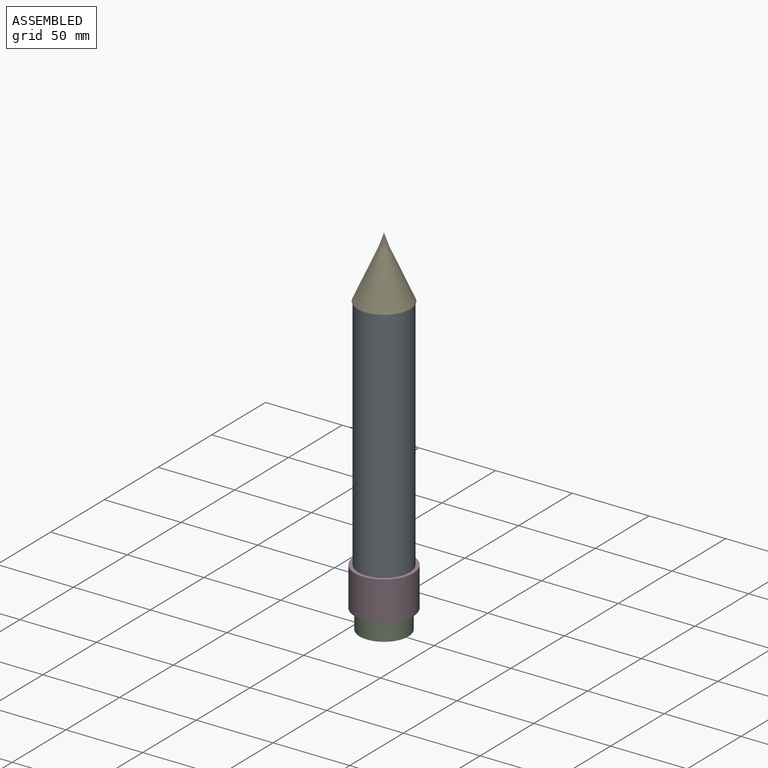
[diagram: assembled view]
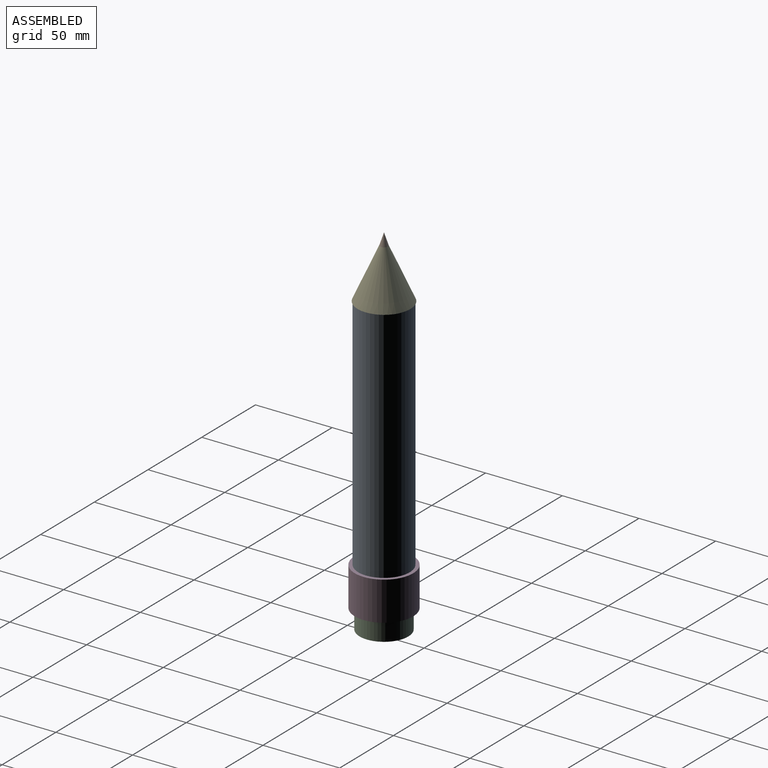
[diagram: assembled view, second angle]
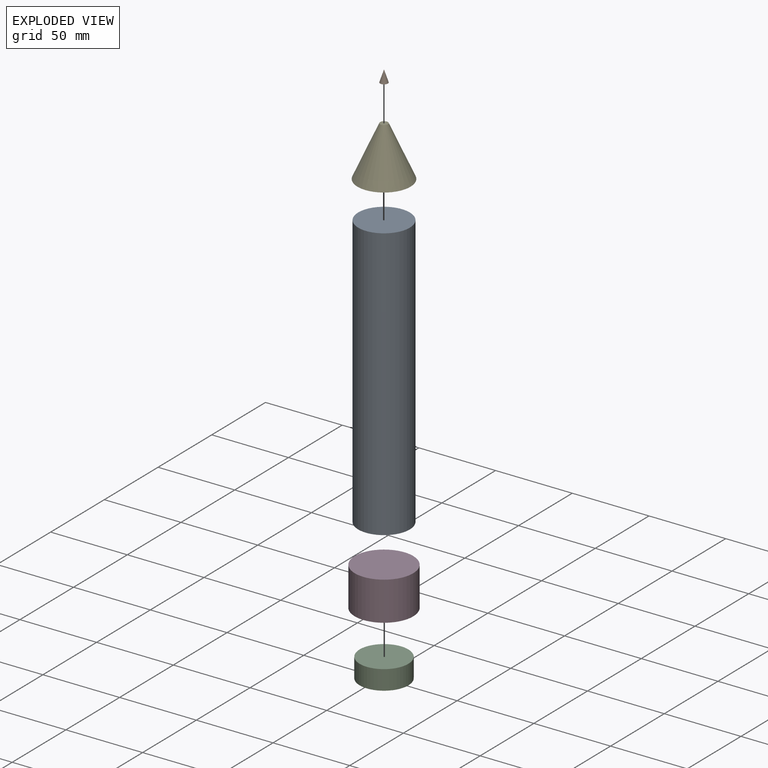
[diagram: exploded view]
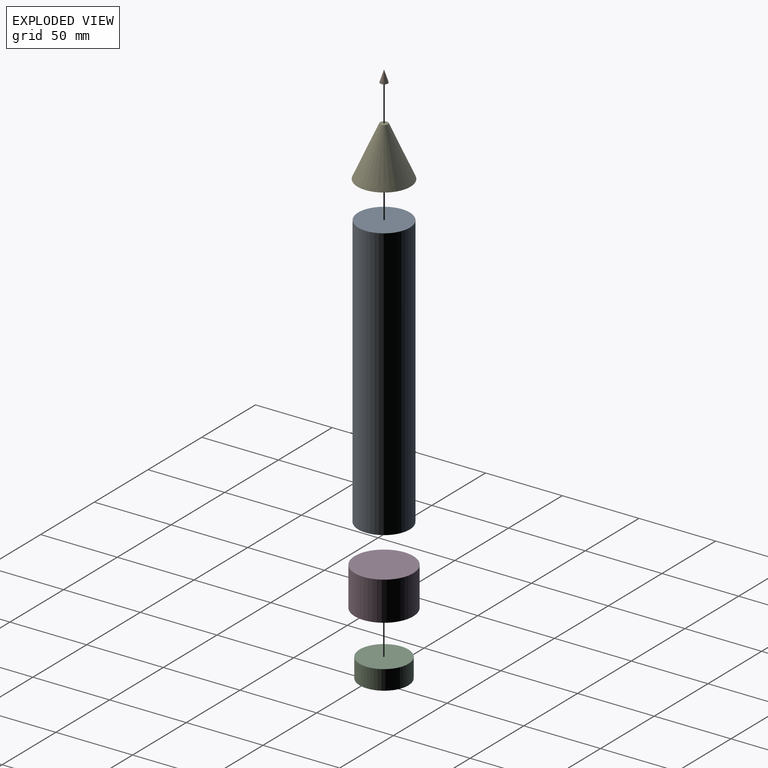
[diagram: exploded view, second angle]
ASSEMBLY  parts=5 mates=4
PART A: 3 faces, bbox 33.6x33.6x177.8 mm
  f0: cylinder r=16.82mm len=177.8mm, axis (0,0,-1), area 18793.4mm2, adj f1,f2
  f1: plane 33.65x33.65mm, normal (0,0,1), area 889.1mm2, adj f0
  f2: plane 33.65x33.65mm, normal (0,0,-1), area 889.1mm2, adj f0
PART B: 2 faces, bbox 5.1x5.1x7.6 mm
  f0: plane 5.08x5.08mm, normal (0,0,-1), area 20.3mm2, adj f1
  f1: cone r=0mm half-angle=18.4deg, axis (0,0,-1), area 64.1mm2, adj f0
PART C: 3 faces, bbox 31.8x31.8x12.7 mm
  f0: cylinder r=15.88mm len=31.75mm, axis (0,0,-1), area 1266.8mm2, adj f1,f2
  f1: plane 31.75x31.75mm, normal (0,0,1), area 791.7mm2, adj f0
  f2: plane 31.75x31.75mm, normal (0,0,-1), area 791.7mm2, adj f0
PART D: 3 faces, bbox 38.1x38.1x25.4 mm
  f0: cylinder r=19.05mm len=38.1mm, axis (0,0,-1), area 3040.2mm2, adj f1,f2
  f1: plane 38.1x38.1mm, normal (0,0,1), area 1140.1mm2, adj f0
  f2: plane 38.1x38.1mm, normal (0,0,-1), area 1140.1mm2, adj f0
PART E: 3 faces, bbox 34.6x34.6x32.8 mm
  f0: cone r=17.28mm half-angle=80.4deg, axis (0,0,-1), area 951.6mm2, adj f1
  f1: cone r=2.54mm half-angle=24.2deg, axis (0,0,-1), area 2241.9mm2, adj f0,f2
  f2: plane 5.08x5.08mm, normal (0,0,1), area 20.3mm2, adj f1
PLACE A t=(25.01,-26.49,0)mm
PLACE B t=(20.89,-26.49,210.89)mm
PLACE C t=(20.89,-26.49,-15.3)mm
PLACE D t=(20.89,-26.49,-2.6)mm
PLACE E t=(20.89,-26.49,180.96)mm
MATE cylindrical D.f0 <-> A.f0  axis (0,0,-1) through (20.89,-26.49,-2.6)mm
MATE cylindrical E.f0 <-> A.f0  axis (0,0,-1) through (20.89,-26.49,178.05)mm
MATE cylindrical D.f0 <-> C.f0  axis (0,0,-1) through (20.89,-26.49,-2.6)mm
MATE cylindrical B.f1 <-> E.f0  axis (0,0,-1) through (20.89,-26.49,210.89)mm
